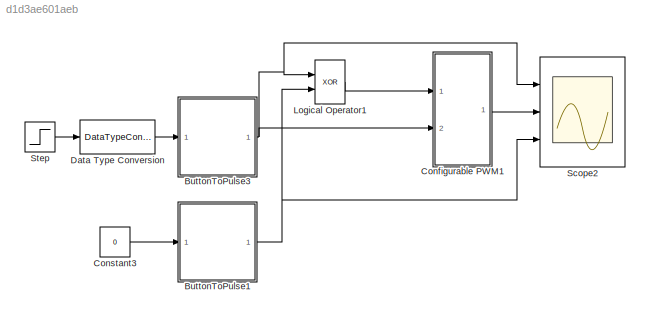
MODEL slx_d1d3ae601aeb
KIND model
CONFIG AbsTol = auto
CONFIG EnableMultiTasking = off
CONFIG FixedStep = 1
CONFIG MaxStep = auto
CONFIG MinStep = auto
CONFIG RelTol = 1e-3
CONFIG SampleTimeConstraint = Unconstrained
CONFIG Solver = FixedStepDiscrete
CONFIG SolverName = FixedStepDiscrete
CONFIG StartTime = 0.0
CONFIG StopTime = 50000
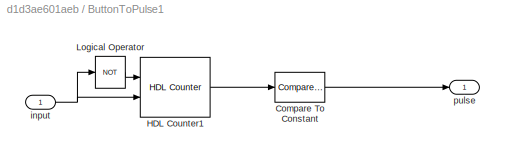
BLOCK [SubSystem] ButtonToPulse1
  Ports = [1, 1]
  RequestExecContextInheritance = off
  Variant = off
BLOCK [Reference] ButtonToPulse1/Compare To Constant  REF=simulink/Logic and Bit
Operations/Compare
To Constant
  Ports = [1, 1]
  SourceBlock = simulink/Logic and Bit\nOperations/Compare\nTo Constant
  SourceProductBaseCode = SL
  SourceProductName = Simulink
  SourceType = Compare To Constant
BLOCK [Reference] ButtonToPulse1/HDL Counter1  REF=hdlsllib/HDL Operations/HDL Counter
  Ports = [2, 1]
  SourceBlock = hdlsllib/HDL Operations/HDL Counter
  SourceProductBaseCode = HD
  SourceProductName = HDL Coder
  SourceType = HDL Counter
BLOCK [Logic] ButtonToPulse1/Logical Operator
  AllPortsSameDT = off
  IconShape = distinctive
  Operator = NOT
  OutDataTypeStr = boolean
  Ports = [1, 1]
BLOCK [Inport] ButtonToPulse1/input
  IconDisplay = Port number
BLOCK [Outport] ButtonToPulse1/pulse
  IconDisplay = Port number
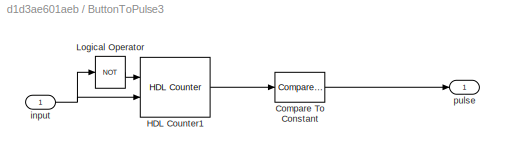
BLOCK [SubSystem] ButtonToPulse3
  Ports = [1, 1]
  RequestExecContextInheritance = off
  Variant = off
BLOCK [Reference] ButtonToPulse3/Compare To Constant  REF=simulink/Logic and Bit
Operations/Compare
To Constant
  Ports = [1, 1]
  SourceBlock = simulink/Logic and Bit\nOperations/Compare\nTo Constant
  SourceProductBaseCode = SL
  SourceProductName = Simulink
  SourceType = Compare To Constant
BLOCK [Reference] ButtonToPulse3/HDL Counter1  REF=hdlsllib/HDL Operations/HDL Counter
  Ports = [2, 1]
  SourceBlock = hdlsllib/HDL Operations/HDL Counter
  SourceProductBaseCode = HD
  SourceProductName = HDL Coder
  SourceType = HDL Counter
BLOCK [Logic] ButtonToPulse3/Logical Operator
  AllPortsSameDT = off
  IconShape = distinctive
  Operator = NOT
  OutDataTypeStr = boolean
  Ports = [1, 1]
BLOCK [Inport] ButtonToPulse3/input
  IconDisplay = Port number
BLOCK [Outport] ButtonToPulse3/pulse
  IconDisplay = Port number
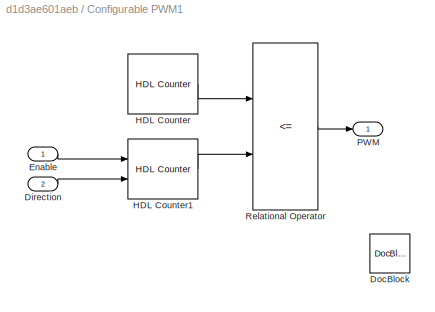
BLOCK [SubSystem] Configurable PWM1
  Ports = [2, 1]
  RequestExecContextInheritance = off
  Variant = off
BLOCK [Inport] Configurable PWM1/Direction
  IconDisplay = Port number
  Port = 2
BLOCK [Reference] Configurable PWM1/DocBlock  REF=simulink/Model-Wide
Utilities/DocBlock
  Ports = []
  SourceBlock = simulink/Model-Wide\nUtilities/DocBlock
  SourceProductBaseCode = SL
  SourceProductName = Simulink
  SourceType = DocBlock
  UserDataPersistent = on
BLOCK [Inport] Configurable PWM1/Enable
  IconDisplay = Port number
BLOCK [Reference] Configurable PWM1/HDL Counter  REF=hdlsllib/HDL Operations/HDL Counter
  Ports = [0, 1]
  SourceBlock = hdlsllib/HDL Operations/HDL Counter
  SourceProductBaseCode = HD
  SourceProductName = HDL Coder
  SourceType = HDL Counter
BLOCK [Reference] Configurable PWM1/HDL Counter1  REF=hdlsllib/HDL Operations/HDL Counter
  Ports = [2, 1]
  SourceBlock = hdlsllib/HDL Operations/HDL Counter
  SourceProductBaseCode = HD
  SourceProductName = HDL Coder
  SourceType = HDL Counter
BLOCK [Outport] Configurable PWM1/PWM
  IconDisplay = Port number
BLOCK [RelationalOperator] Configurable PWM1/Relational Operator
  InputSameDT = off
  Operator = <=
  OutDataTypeStr = boolean
  Ports = [2, 1]
  RndMeth = Simplest
BLOCK [Constant] Constant3
  OutDataTypeStr = boolean
  Value = 0
BLOCK [DataTypeConversion] Data Type Conversion
  OutDataTypeStr = boolean
  RndMeth = Floor
  SaturateOnIntegerOverflow = off
BLOCK [Logic] Logical Operator1
  AllPortsSameDT = off
  IconShape = distinctive
  Operator = XOR
  OutDataTypeStr = boolean
  Ports = [2, 1]
BLOCK [Scope] Scope2
  NumInputPorts = 3
  Ports = [3]
  ScopeSpecificationString = Simulink.scopes.TimeScopeBlockCfg('CurrentConfiguration', extmgr.ConfigurationSet(extmgr.Configuration('Core','General UI',true),extmgr.Configuration('Core','Source UI',true),extmgr.Configuration('Sources','WiredSimulink',true,'DataLoggingVariableName','ScopeData2'),extmgr.Configuration('Visuals','Time Domain',true,'SerializedDisplays',{struct('MinYLimReal','-0.125','MaxYLimReal','1.125','YLabelRe...<+2754ch>
BLOCK [Step] Step
  After = 0
  Before = 1
  SampleTime = 0
  Time = 25000
LINE ButtonToPulse1/Compare To Constant:1 -> ButtonToPulse1/pulse:1
LINE ButtonToPulse1/HDL Counter1:1 -> ButtonToPulse1/Compare To Constant:1
LINE ButtonToPulse1/Logical Operator:1 -> ButtonToPulse1/HDL Counter1:1
NET ButtonToPulse1/input:1 -> ButtonToPulse1/HDL Counter1:2, ButtonToPulse1/Logical Operator:1
NET ButtonToPulse1:1 -> Logical Operator1:2, Scope2:3
LINE ButtonToPulse3/Compare To Constant:1 -> ButtonToPulse3/pulse:1
LINE ButtonToPulse3/HDL Counter1:1 -> ButtonToPulse3/Compare To Constant:1
LINE ButtonToPulse3/Logical Operator:1 -> ButtonToPulse3/HDL Counter1:1
NET ButtonToPulse3/input:1 -> ButtonToPulse3/HDL Counter1:2, ButtonToPulse3/Logical Operator:1
NET ButtonToPulse3:1 -> Configurable PWM1:2, Logical Operator1:1, Scope2:1
LINE Configurable PWM1/Direction:1 -> Configurable PWM1/HDL Counter1:2
LINE Configurable PWM1/Enable:1 -> Configurable PWM1/HDL Counter1:1
LINE Configurable PWM1/HDL Counter1:1 -> Configurable PWM1/Relational Operator:2
LINE Configurable PWM1/HDL Counter:1 -> Configurable PWM1/Relational Operator:1
LINE Configurable PWM1/Relational Operator:1 -> Configurable PWM1/PWM:1
LINE Configurable PWM1:1 -> Scope2:2
LINE Constant3:1 -> ButtonToPulse1:1
LINE Data Type Conversion:1 -> ButtonToPulse3:1
LINE Logical Operator1:1 -> Configurable PWM1:1
LINE Step:1 -> Data Type Conversion:1
note: NET lines group one-source signal fan-out (src -> all destinations, sorted); 1:1 wires keep LINE
